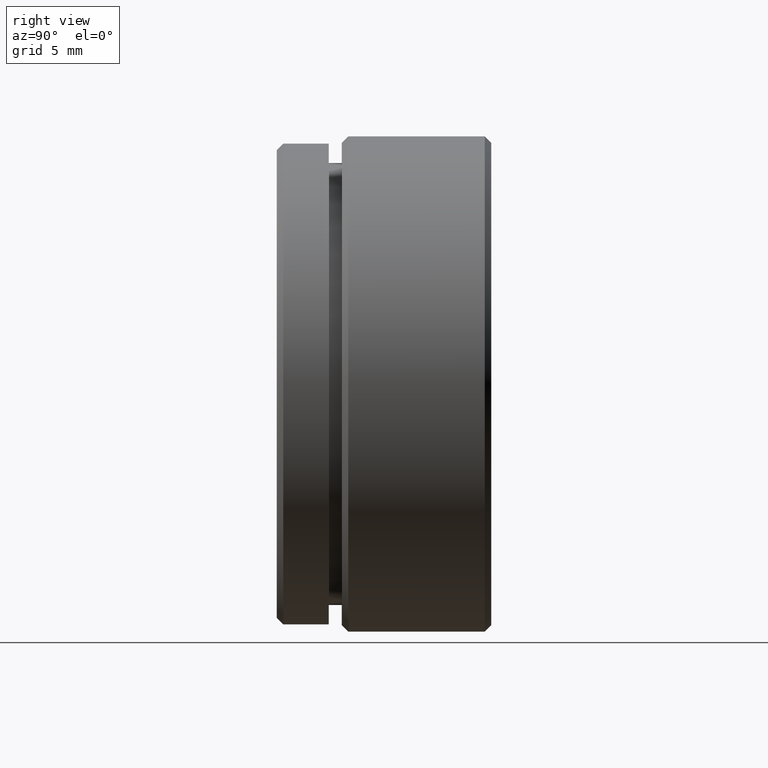
[diagram: clean part render]
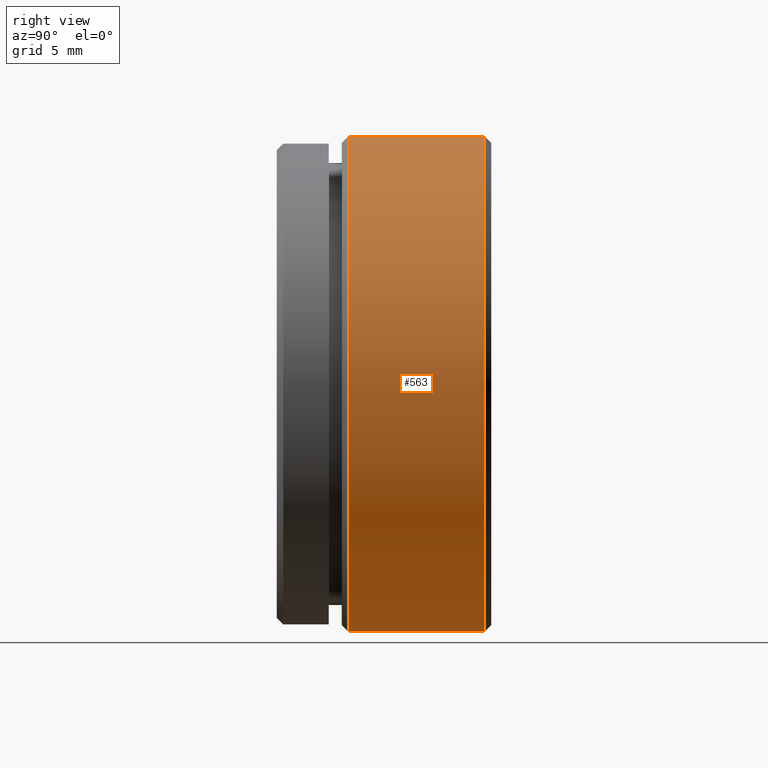
[diagram: same view with one face highlighted and labeled with its STEP entity id]
A machine part, right view. The second image highlights one B-rep face of the part: STEP entity #563.
In plain terms, the highlighted cylindrical surface (partial cylindrical patch) has radius 19.05 mm, axis along (-0, -1, -0).
Its self-contained STEP definition (entity closure, byte-faithful):
#80 = CYLINDRICAL_SURFACE ( 'NONE', #724, 19.04999999999999700 ) ;
#156 = VERTEX_POINT ( 'NONE', #473 ) ;
#225 = DIRECTION ( 'NONE',  ( 0.0000000000000000000, 0.0000000000000000000, -1.000000000000000000 ) ) ;
#227 = CARTESIAN_POINT ( 'NONE',  ( 2.332952152375707300E-015, 5.500000000000014200, 19.04999999999999700 ) ) ;
#254 = DIRECTION ( 'NONE',  ( -0.0000000000000000000, -1.000000000000000000, -0.0000000000000000000 ) ) ;
#271 = VERTEX_POINT ( 'NONE', #227 ) ;
#282 = DIRECTION ( 'NONE',  ( 0.0000000000000000000, 0.0000000000000000000, 1.000000000000000000 ) ) ;
#311 = ORIENTED_EDGE ( 'NONE', *, *, #387, .T. ) ;
#314 = ORIENTED_EDGE ( 'NONE', *, *, #449, .T. ) ;
#316 = ORIENTED_EDGE ( 'NONE', *, *, #845, .T. ) ;
#332 = DIRECTION ( 'NONE',  ( -0.0000000000000000000, -1.000000000000000000, -0.0000000000000000000 ) ) ;
#349 = VERTEX_POINT ( 'NONE', #839 ) ;
#357 = CARTESIAN_POINT ( 'NONE',  ( 0.0000000000000000000, 5.500000000000014200, 0.0000000000000000000 ) ) ;
#363 = DIRECTION ( 'NONE',  ( 0.0000000000000000000, 1.000000000000000000, 0.0000000000000000000 ) ) ;
#387 = EDGE_CURVE ( 'NONE', #873, #271, #870, .T. ) ;
#396 = DIRECTION ( 'NONE',  ( 0.0000000000000000000, 0.0000000000000000000, -1.000000000000000000 ) ) ;
#435 = EDGE_CURVE ( 'NONE', #349, #156, #676, .T. ) ;
#449 = EDGE_CURVE ( 'NONE', #271, #156, #758, .T. ) ;
#473 = CARTESIAN_POINT ( 'NONE',  ( 0.0000000000000000000, 5.500000000000014200, -19.04999999999999700 ) ) ;
#522 = CARTESIAN_POINT ( 'NONE',  ( 0.0000000000000000000, 16.00000000000000400, 0.0000000000000000000 ) ) ;
#563 = ADVANCED_FACE ( 'NONE', ( #844 ), #80, .T. ) ;
#568 = ORIENTED_EDGE ( 'NONE', *, *, #435, .F. ) ;
#597 = DIRECTION ( 'NONE',  ( -0.0000000000000000000, -1.000000000000000000, -0.0000000000000000000 ) ) ;
#612 = CIRCLE ( 'NONE', #741, 19.04999999999999700 ) ;
#624 = CARTESIAN_POINT ( 'NONE',  ( 2.332952152375707300E-015, 16.00000000000000400, 19.04999999999999700 ) ) ;
#631 = AXIS2_PLACEMENT_3D ( 'NONE', #357, #363, #225 ) ;
#638 = CARTESIAN_POINT ( 'NONE',  ( 0.0000000000000000000, 0.0000000000000000000, 0.0000000000000000000 ) ) ;
#676 = LINE ( 'NONE', #743, #800 ) ;
#724 = AXIS2_PLACEMENT_3D ( 'NONE', #638, #254, #396 ) ;
#741 = AXIS2_PLACEMENT_3D ( 'NONE', #522, #597, #282 ) ;
#743 = CARTESIAN_POINT ( 'NONE',  ( 0.0000000000000000000, 0.0000000000000000000, -19.04999999999999700 ) ) ;
#753 = VECTOR ( 'NONE', #765, 1000.000000000000000 ) ;
#758 = CIRCLE ( 'NONE', #631, 19.04999999999999700 ) ;
#763 = CARTESIAN_POINT ( 'NONE',  ( 2.332952152375707300E-015, 0.0000000000000000000, 19.04999999999999700 ) ) ;
#765 = DIRECTION ( 'NONE',  ( -0.0000000000000000000, -1.000000000000000000, -0.0000000000000000000 ) ) ;
#800 = VECTOR ( 'NONE', #332, 1000.000000000000000 ) ;
#825 = EDGE_LOOP ( 'NONE', ( #316, #311, #314, #568 ) ) ;
#839 = CARTESIAN_POINT ( 'NONE',  ( 0.0000000000000000000, 16.00000000000000400, -19.04999999999999700 ) ) ;
#844 = FACE_OUTER_BOUND ( 'NONE', #825, .T. ) ;
#845 = EDGE_CURVE ( 'NONE', #349, #873, #612, .T. ) ;
#870 = LINE ( 'NONE', #763, #753 ) ;
#873 = VERTEX_POINT ( 'NONE', #624 ) ;